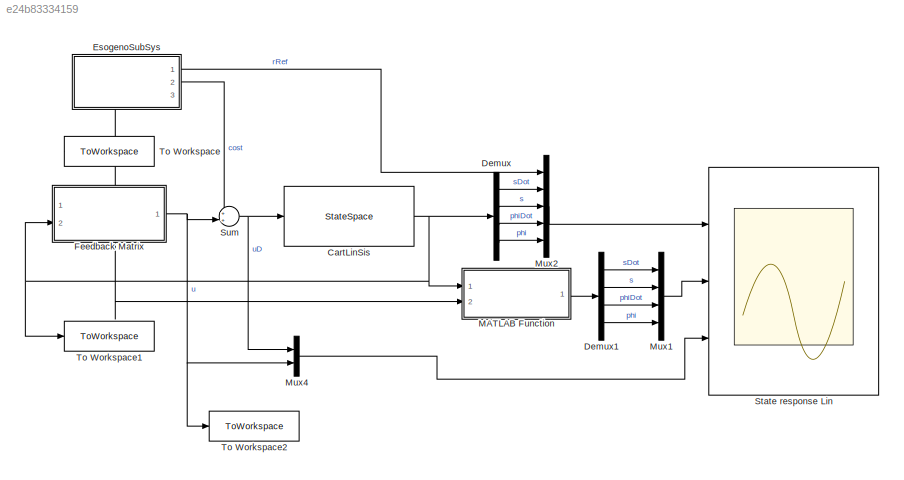
MODEL slx_e24b83334159
KIND model
CONFIG AbsTol = auto
CONFIG EnableMultiTasking = off
CONFIG FixedStep = 0.05
CONFIG InitFcn = variableCalc
CONFIG MaxStep = auto
CONFIG MinStep = auto
CONFIG RelTol = 1e-5
CONFIG SampleTimeConstraint = Unconstrained
CONFIG Solver = FixedStepAuto
CONFIG SolverName = FixedStepAuto
CONFIG StartTime = 0.0
CONFIG StopTime = time
BLOCK [StateSpace] CartLinSis
  A = Alin
  B = Blin
  C = cAll
  D = dAll
  InitialCondition = x0
  Ports = [1, 1]
BLOCK [Demux] Demux
  Ports = [1, 4]
BLOCK [Demux] Demux1
  Ports = [1, 4]
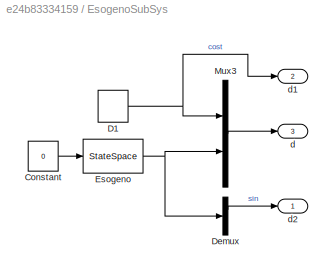
BLOCK [SubSystem] EsogenoSubSys
  PortSchema = {"entries":[{"content":{"sides":[{"content":{"connectorIds":["Out3"]},"type":"ConnectorPlacement.EquallySpacedRectSide","uuid":"2f048b8f-2ece-4481-a059-706f1c660597"},{"content":{"connectorIds":["Out1","Out2"],"side":"RIGHT"},"type":"ConnectorPlacement.EquallySpacedRectSide","uuid":"5f2d4447-8f06-4961-a5d4-88bfa1a982d6"},{"content":{"connectorIds":[],"side":"TOP"},"type":"ConnectorPlacement.Equall...<+250ch>
  Ports = [0, 3]
  RequestExecContextInheritance = off
BLOCK [Constant] EsogenoSubSys/Constant
  Value = 0
BLOCK [DiscretePulseGenerator] EsogenoSubSys/D1
  Amplitude = aD1
  Period = wD1
  Ports = [0, 1]
  PulseType = Time based
  PulseWidth = 50
BLOCK [Demux] EsogenoSubSys/Demux
  Outputs = 2
  Ports = [1, 2]
BLOCK [StateSpace] EsogenoSubSys/Esogeno
  A = S
  B = bd
  C = cd
  D = dd
  InitialCondition = d0
  Ports = [1, 1]
BLOCK [Mux] EsogenoSubSys/Mux3
  DisplayOption = bar
  Inputs = 2
  Ports = [2, 1]
BLOCK [Outport] EsogenoSubSys/d
  Port = 3
BLOCK [Outport] EsogenoSubSys/d1
  Port = 2
BLOCK [Outport] EsogenoSubSys/d2
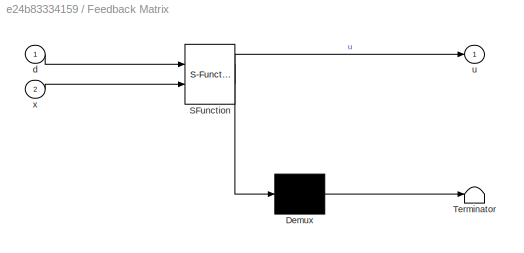
BLOCK [SubSystem] Feedback Matrix
  ErrorFcn = Stateflow.Translate.translate
  PermitHierarchicalResolution = ExplicitOnly
  Ports = [2, 1]
  RequestExecContextInheritance = off
  SFBlockType = MATLAB Function
  TreatAsAtomicUnit = on
BLOCK [Demux] Feedback Matrix/ Demux 
  Outputs = 1
  Ports = [1, 1]
BLOCK [S-Function] Feedback Matrix/ SFunction 
  EnableBusSupport = on
  FunctionName = sf_sfun
  PortCounts = [2 2]
  Ports = [2, 2]
  SFcnIsStateOwnerBlock = off
  SFunctionDeploymentMode = off
  Tag = Stateflow S-Function 2
BLOCK [Terminator] Feedback Matrix/ Terminator 
BLOCK [Inport] Feedback Matrix/d
BLOCK [Outport] Feedback Matrix/u
BLOCK [Inport] Feedback Matrix/x
  Port = 2
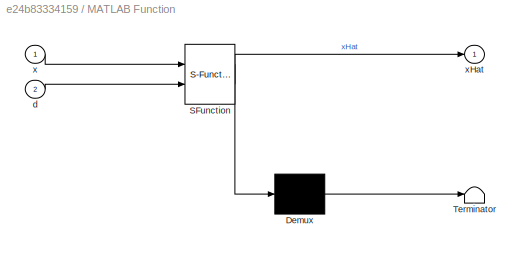
BLOCK [SubSystem] MATLAB Function
  ErrorFcn = Stateflow.Translate.translate
  PermitHierarchicalResolution = ExplicitOnly
  Ports = [2, 1]
  RequestExecContextInheritance = off
  SFBlockType = MATLAB Function
  TreatAsAtomicUnit = on
BLOCK [Demux] MATLAB Function/ Demux 
  Outputs = 1
  Ports = [1, 1]
BLOCK [S-Function] MATLAB Function/ SFunction 
  EnableBusSupport = on
  FunctionName = sf_sfun
  PortCounts = [2 2]
  Ports = [2, 2]
  SFcnIsStateOwnerBlock = off
  SFunctionDeploymentMode = off
  Tag = Stateflow S-Function 1
BLOCK [Terminator] MATLAB Function/ Terminator 
BLOCK [Inport] MATLAB Function/d
  Port = 2
BLOCK [Inport] MATLAB Function/x
BLOCK [Outport] MATLAB Function/xHat
BLOCK [Mux] Mux1
  DisplayOption = bar
  Ports = [4, 1]
BLOCK [Mux] Mux2
  DisplayOption = bar
  Inputs = 5
  Ports = [5, 1]
BLOCK [Mux] Mux4
  DisplayOption = bar
  Inputs = 2
  Ports = [2, 1]
BLOCK [Scope] State response Lin
  Floating = off
  NumInputPorts = 3
  Ports = [3]
  ScopeSpecificationString = Simulink.scopes.TimeScopeBlockCfg('CurrentConfiguration', extmgr.ConfigurationSet(extmgr.Configuration('Core','General UI',true),extmgr.Configuration('Core','Source UI',true),extmgr.Configuration('Sources','WiredSimulink',true),extmgr.Configuration('Visuals','Time Domain',true,'SerializedDisplays',{struct('MinYLimReal','-5.92497','MaxYLimReal','2.20331','YLabelReal','','MinYLimMag','0.00000','MaxY...<+3749ch>
BLOCK [Sum] Sum
  Inputs = ++|
  Ports = [2, 1]
BLOCK [ToWorkspace] To Workspace
  FixptAsFi = on
  MaxDataPoints = inf
  Ports = [1]
  SampleTime = -1
  SaveFormat = Timeseries
  VariableName = D
BLOCK [ToWorkspace] To Workspace1
  FixptAsFi = on
  MaxDataPoints = inf
  Ports = [1]
  SampleTime = -1
  SaveFormat = Timeseries
  VariableName = X
BLOCK [ToWorkspace] To Workspace2
  FixptAsFi = on
  MaxDataPoints = inf
  Ports = [1]
  SampleTime = -1
  SaveFormat = Timeseries
  VariableName = U
NET CartLinSis:1 -> Demux:1, Feedback Matrix:2, MATLAB Function:1, To Workspace1:1
LINE Demux1:1 -> Mux1:1
LINE Demux1:2 -> Mux1:2
LINE Demux1:3 -> Mux1:3
LINE Demux1:4 -> Mux1:4
LINE Demux:1 -> Mux2:2
LINE Demux:2 -> Mux2:3
LINE Demux:3 -> Mux2:4
LINE Demux:4 -> Mux2:5
LINE EsogenoSubSys/Constant:1 -> EsogenoSubSys/Esogeno:1
NET EsogenoSubSys/D1:1 -> EsogenoSubSys/Mux3:1, EsogenoSubSys/d1:1
LINE EsogenoSubSys/Demux:1 -> EsogenoSubSys/d2:1
NET EsogenoSubSys/Esogeno:1 -> EsogenoSubSys/Demux:1, EsogenoSubSys/Mux3:2
LINE EsogenoSubSys/Mux3:1 -> EsogenoSubSys/d:1
LINE EsogenoSubSys:1 -> Mux2:1
LINE EsogenoSubSys:2 -> Sum:1
NET EsogenoSubSys:3 -> Feedback Matrix:1, MATLAB Function:2, To Workspace:1
NET Feedback Matrix:1 -> Mux4:2, Sum:2, To Workspace2:1
LINE MATLAB Function:1 -> Demux1:1
LINE Mux1:1 -> State response Lin:2
LINE Mux2:1 -> State response Lin:1
LINE Mux4:1 -> State response Lin:3
NET Sum:1 -> CartLinSis:1, Mux4:1
note: NET lines group one-source signal fan-out (src -> all destinations, sorted); 1:1 wires keep LINE
CHART MATLAB Function states=1 transitions=1
  STATE_LABEL 'eML_blk_kernel()'
  STATE_LABEL "SCRIPT:\nfunction xHat = baseChange(x,d)\n\ncoder.extrinsic('evalin', 'assignin')\nPiMat = zeros(4,3);                  % Needed in order to set variable class correctly\nPiMat = evalin('base','PiMat'); % Read value from workspace\n\n\nxHat = x-PiMat*d;\nend\n"
CHART Feedback Matrix states=1 transitions=1
  STATE_LABEL 'eML_blk_kernel()'
  STATE_LABEL "SCRIPT:\nfunction u = feedMatrix(d,x)\n\ncoder.extrinsic('evalin', 'assignin')\nK = zeros(1,4);                  % Needed in order to set variable class correctly\nK = evalin('base','K'); % Read value from workspace\n\nL = zeros(1,3);                  % Needed in order to set variable class correctly\nL = evalin('base','L'); % Read value from workspace\n\n% x(2)=x(2)-d(2);\n\nu=K*x+L*d;\n"
CHART  states=0 transitions=0
CHART  states=0 transitions=0
